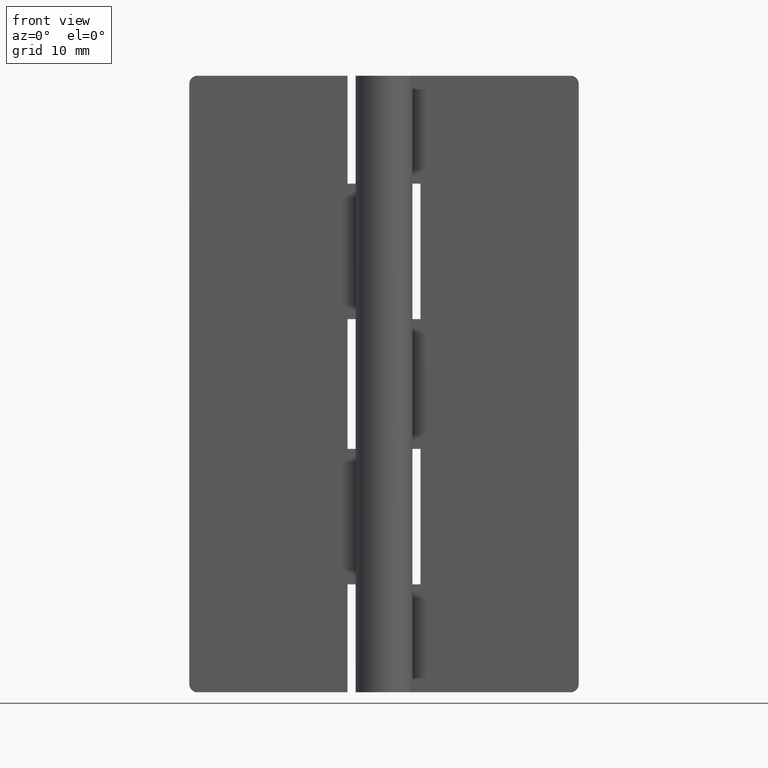
[diagram: clean part render]
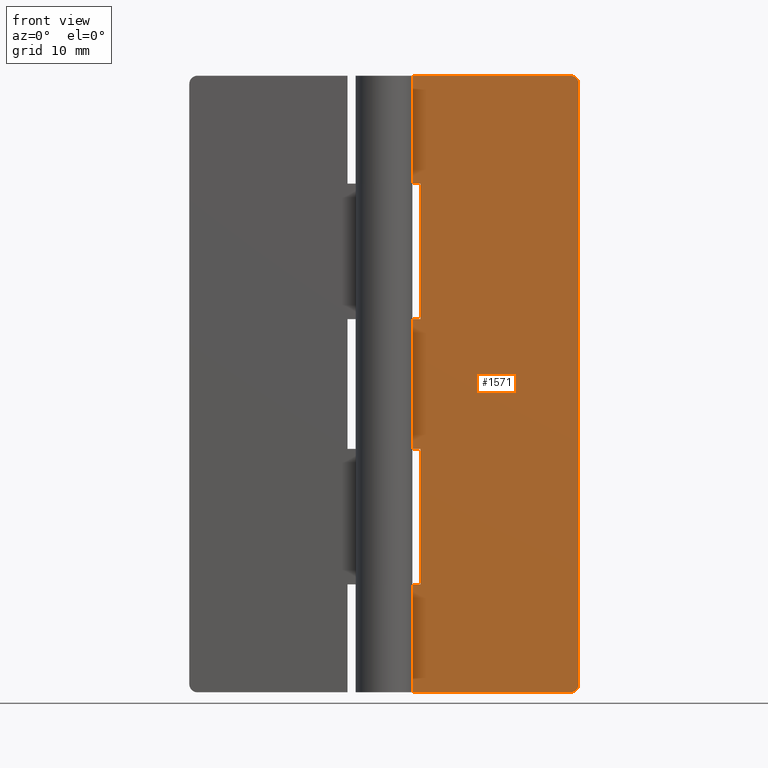
[diagram: same view with one face highlighted and labeled with its STEP entity id]
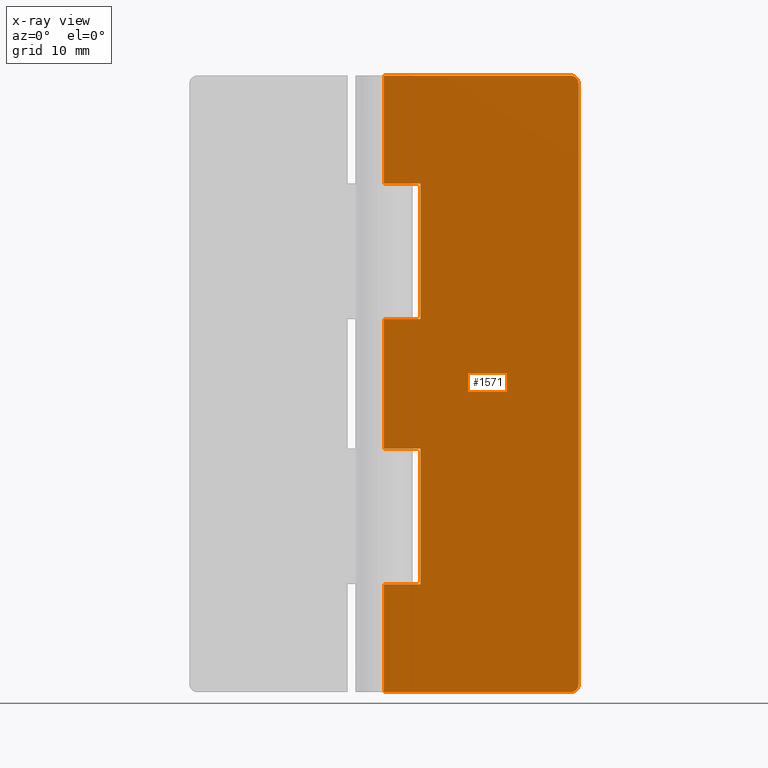
[diagram: x-ray of the same camera — body ghosted, the highlighted face saturated]
A machine part, front view. The second image highlights one B-rep face of the part: STEP entity #1571.
The next image is the same camera in x-ray: the body ghosted, the highlighted face saturated — about 0% of this face is hidden behind the body in this view.
In plain terms, the highlighted face is a freeform B-spline surface patch.
Its self-contained STEP definition (entity closure, byte-faithful):
#902=CARTESIAN_POINT('',(24.0,2.0,1.0));
#903=VERTEX_POINT('',#902);
#909=CARTESIAN_POINT('',(23.0,2.0,0.0));
#910=VERTEX_POINT('',#909);
#911=CARTESIAN_POINT('',(23.0,2.0,0.0));
#912=CARTESIAN_POINT('',(23.999999999999996,2.000000000000000,0.0));
#913=CARTESIAN_POINT('',(24.0,2.0,1.0));
#921=(BOUNDED_CURVE()B_SPLINE_CURVE(2,(#911,#912,#913),.UNSPECIFIED.,.F.,.U.)CURVE()GEOMETRIC_REPRESENTATION_ITEM()QUASI_UNIFORM_CURVE()RATIONAL_B_SPLINE_CURVE((1.0,0.707106781186548,1.0))REPRESENTATION_ITEM(''));
#922=EDGE_CURVE('',#910,#903,#921,.T.);
#963=CARTESIAN_POINT('',(23.0,2.0,75.999991999999793));
#964=VERTEX_POINT('',#963);
#970=CARTESIAN_POINT('',(24.0,2.0,74.999991999999693));
#971=VERTEX_POINT('',#970);
#972=CARTESIAN_POINT('',(24.0,2.0,74.999991999999693));
#973=CARTESIAN_POINT('',(23.999999999999996,2.000000000000000,75.999991999999693));
#974=CARTESIAN_POINT('',(23.0,2.0,75.999991999999693));
#982=(BOUNDED_CURVE()B_SPLINE_CURVE(2,(#972,#973,#974),.UNSPECIFIED.,.F.,.U.)CURVE()GEOMETRIC_REPRESENTATION_ITEM()QUASI_UNIFORM_CURVE()RATIONAL_B_SPLINE_CURVE((1.0,0.707106781186548,1.0))REPRESENTATION_ITEM(''));
#983=EDGE_CURVE('',#971,#964,#982,.T.);
#1028=CARTESIAN_POINT('',(4.500000000000000,2.0,30.0));
#1029=VERTEX_POINT('',#1028);
#1035=CARTESIAN_POINT('',(0.0,2.0,30.0));
#1036=VERTEX_POINT('',#1035);
#1037=CARTESIAN_POINT('',(4.500000000000000,2.0,30.0));
#1038=CARTESIAN_POINT('',(0.0,2.0,30.0));
#1039=QUASI_UNIFORM_CURVE('',1,(#1037,#1038),.UNSPECIFIED.,.F.,.U.);
#1040=EDGE_CURVE('',#1029,#1036,#1039,.T.);
#1076=CARTESIAN_POINT('',(4.500000000000000,2.0,13.299987000000000));
#1077=VERTEX_POINT('',#1076);
#1078=CARTESIAN_POINT('',(4.500000000000000,2.0,13.299987000000000));
#1079=CARTESIAN_POINT('',(4.500000000000000,2.0,30.0));
#1080=QUASI_UNIFORM_CURVE('',1,(#1078,#1079),.UNSPECIFIED.,.F.,.U.);
#1081=EDGE_CURVE('',#1077,#1029,#1080,.T.);
#1134=CARTESIAN_POINT('',(0.0,2.0,13.299987000000000));
#1135=VERTEX_POINT('',#1134);
#1155=CARTESIAN_POINT('',(0.0,2.0,13.299987000000000));
#1156=CARTESIAN_POINT('',(4.500000000000000,2.0,13.299987000000000));
#1157=QUASI_UNIFORM_CURVE('',1,(#1155,#1156),.UNSPECIFIED.,.F.,.U.);
#1158=EDGE_CURVE('',#1135,#1077,#1157,.T.);
#1204=CARTESIAN_POINT('',(0.0,2.0,45.999991999999899));
#1205=VERTEX_POINT('',#1204);
#1225=CARTESIAN_POINT('',(4.500000000000000,2.0,45.999991999999899));
#1226=VERTEX_POINT('',#1225);
#1227=CARTESIAN_POINT('',(0.0,2.0,45.999991999999899));
#1228=CARTESIAN_POINT('',(4.500000000000000,2.0,45.999991999999899));
#1229=QUASI_UNIFORM_CURVE('',1,(#1227,#1228),.UNSPECIFIED.,.F.,.U.);
#1230=EDGE_CURVE('',#1205,#1226,#1229,.T.);
#1252=CARTESIAN_POINT('',(4.500000000000000,2.0,62.700004999999798));
#1253=VERTEX_POINT('',#1252);
#1254=CARTESIAN_POINT('',(4.500000000000000,2.0,45.999991999999899));
#1255=CARTESIAN_POINT('',(4.500000000000000,2.0,62.700004999999798));
#1256=QUASI_UNIFORM_CURVE('',1,(#1254,#1255),.UNSPECIFIED.,.F.,.U.);
#1257=EDGE_CURVE('',#1226,#1253,#1256,.T.);
#1309=CARTESIAN_POINT('',(0.0,2.0,62.700004999999798));
#1310=VERTEX_POINT('',#1309);
#1311=CARTESIAN_POINT('',(4.500000000000000,2.0,62.700004999999798));
#1312=CARTESIAN_POINT('',(0.0,2.0,62.700004999999798));
#1313=QUASI_UNIFORM_CURVE('',1,(#1311,#1312),.UNSPECIFIED.,.F.,.U.);
#1314=EDGE_CURVE('',#1253,#1310,#1313,.T.);
#1358=CARTESIAN_POINT('',(0.0,2.0,0.0));
#1359=VERTEX_POINT('',#1358);
#1360=CARTESIAN_POINT('',(23.0,2.0,0.0));
#1361=CARTESIAN_POINT('',(0.0,2.0,0.0));
#1362=QUASI_UNIFORM_CURVE('',1,(#1360,#1361),.UNSPECIFIED.,.F.,.U.);
#1363=EDGE_CURVE('',#910,#1359,#1362,.T.);
#1420=CARTESIAN_POINT('',(0.0,2.0,75.999991999999693));
#1421=VERTEX_POINT('',#1420);
#1422=CARTESIAN_POINT('',(23.0,2.0,75.999991999999793));
#1423=CARTESIAN_POINT('',(0.0,2.0,75.999991999999693));
#1424=QUASI_UNIFORM_CURVE('',1,(#1422,#1423),.UNSPECIFIED.,.F.,.U.);
#1425=EDGE_CURVE('',#964,#1421,#1424,.T.);
#1529=CARTESIAN_POINT('',(0.0,2.0,45.999991999999899));
#1530=CARTESIAN_POINT('',(0.0,2.0,30.0));
#1531=QUASI_UNIFORM_CURVE('',1,(#1529,#1530),.UNSPECIFIED.,.F.,.U.);
#1532=EDGE_CURVE('',#1205,#1036,#1531,.T.);
#1538=CARTESIAN_POINT('',(-1.198799953483340,2.0,79.796192166530602));
#1539=CARTESIAN_POINT('',(-1.198799953483340,2.0,-3.796201525516570));
#1540=CARTESIAN_POINT('',(25.198800597213509,2.0,79.796192166530602));
#1541=CARTESIAN_POINT('',(25.198800597213509,2.0,-3.796201525516570));
#1542=B_SPLINE_SURFACE_WITH_KNOTS('',1,1,((#1538,#1540),(#1539,#1541)),.UNSPECIFIED.,.F.,.F.,.U.,(2,2),(2,2),(0.0,83.592393692047168),(0.0,26.397600550696851),.UNSPECIFIED.);
#1543=CARTESIAN_POINT('',(24.0,2.0,74.999991999999693));
#1544=CARTESIAN_POINT('',(24.0,2.0,1.0));
#1545=QUASI_UNIFORM_CURVE('',1,(#1543,#1544),.UNSPECIFIED.,.F.,.U.);
#1546=EDGE_CURVE('',#971,#903,#1545,.T.);
#1547=ORIENTED_EDGE('',*,*,#1546,.F.);
#1548=ORIENTED_EDGE('',*,*,#983,.T.);
#1549=ORIENTED_EDGE('',*,*,#1425,.T.);
#1550=CARTESIAN_POINT('',(0.0,2.0,75.999991999999693));
#1551=CARTESIAN_POINT('',(0.0,2.0,62.700004999999798));
#1552=QUASI_UNIFORM_CURVE('',1,(#1550,#1551),.UNSPECIFIED.,.F.,.U.);
#1553=EDGE_CURVE('',#1421,#1310,#1552,.T.);
#1554=ORIENTED_EDGE('',*,*,#1553,.T.);
#1555=ORIENTED_EDGE('',*,*,#1314,.F.);
#1556=ORIENTED_EDGE('',*,*,#1257,.F.);
#1557=ORIENTED_EDGE('',*,*,#1230,.F.);
#1558=ORIENTED_EDGE('',*,*,#1532,.T.);
#1559=ORIENTED_EDGE('',*,*,#1040,.F.);
#1560=ORIENTED_EDGE('',*,*,#1081,.F.);
#1561=ORIENTED_EDGE('',*,*,#1158,.F.);
#1562=CARTESIAN_POINT('',(0.0,2.0,13.299987000000000));
#1563=CARTESIAN_POINT('',(0.0,2.0,0.0));
#1564=QUASI_UNIFORM_CURVE('',1,(#1562,#1563),.UNSPECIFIED.,.F.,.U.);
#1565=EDGE_CURVE('',#1135,#1359,#1564,.T.);
#1566=ORIENTED_EDGE('',*,*,#1565,.T.);
#1567=ORIENTED_EDGE('',*,*,#1363,.F.);
#1568=ORIENTED_EDGE('',*,*,#922,.T.);
#1569=EDGE_LOOP('',(#1547,#1548,#1549,#1554,#1555,#1556,#1557,#1558,#1559,#1560,#1561,#1566,#1567,#1568));
#1570=FACE_OUTER_BOUND('',#1569,.T.);
#1571=ADVANCED_FACE('',(#1570),#1542,.T.);